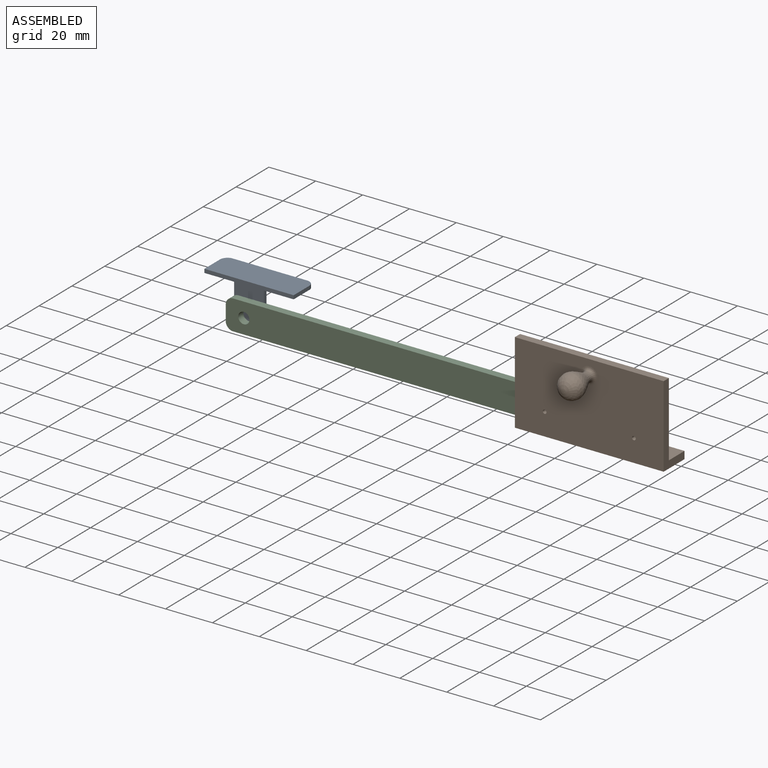
[diagram: assembled view]
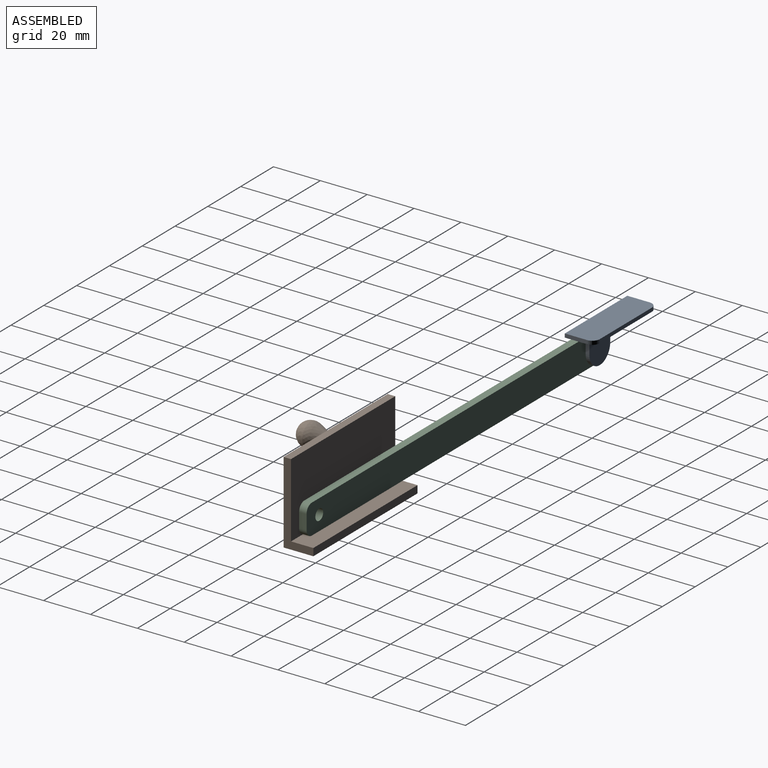
[diagram: assembled view, second angle]
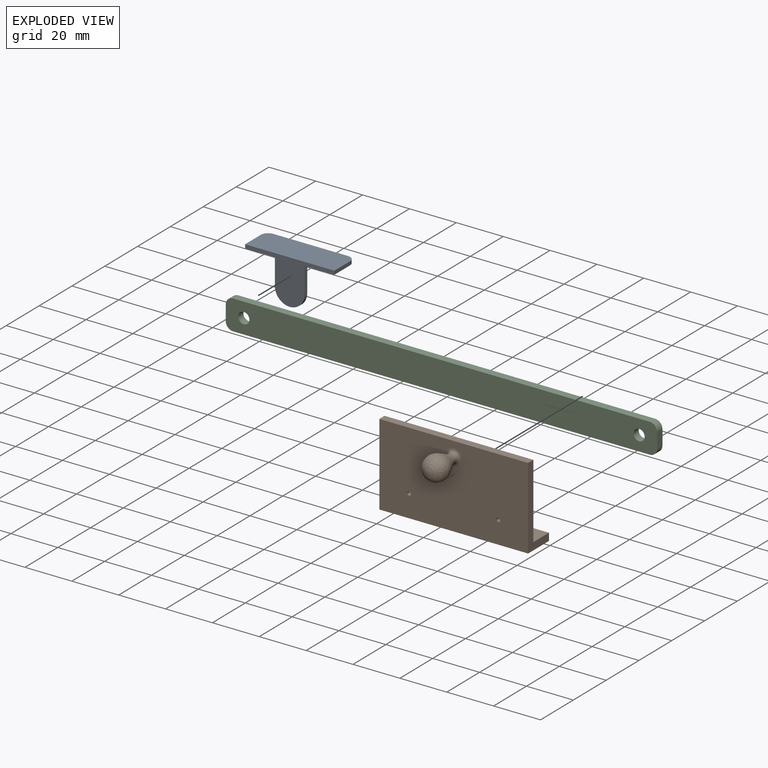
[diagram: exploded view]
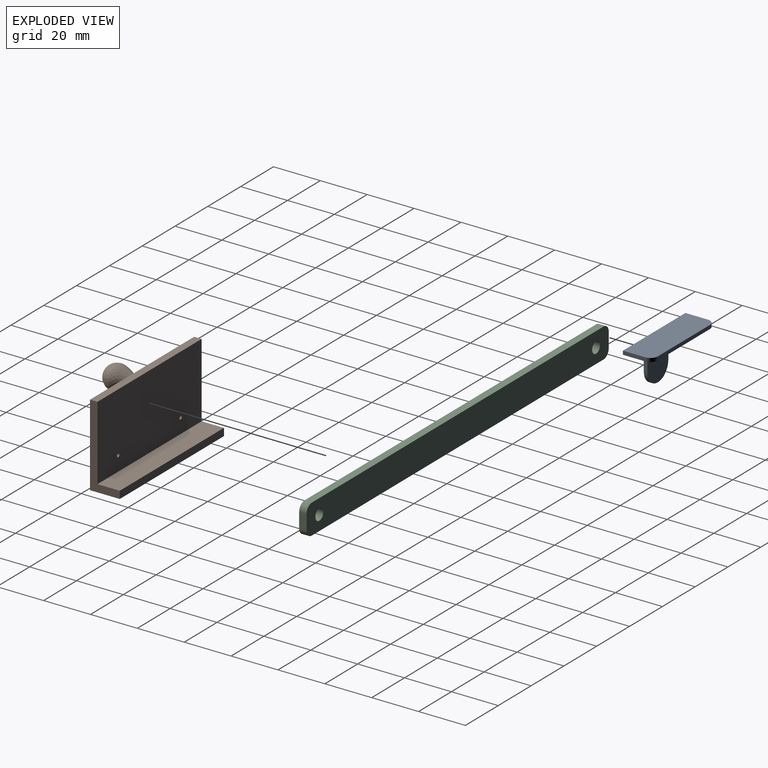
[diagram: exploded view, second angle]
ASSEMBLY  parts=3 mates=2
PART A: 12 faces, bbox 38.1x12.7x19.1 mm
  f0: plane 9.53x1.59mm, normal (-1,0,0), area 15.1mm2, adj f1,f5,f6,f7
  f1: cylinder r=3.17mm len=3.18mm, axis (0,0,-1), area 7.9mm2, adj f0,f2,f6,f7
  f2: plane 31.75x1.59mm, normal (0,-1,0), area 50.4mm2, adj f1,f3,f6,f7
  f3: cylinder r=3.17mm len=3.18mm, axis (0,0,-1), area 7.9mm2, adj f2,f4,f6,f7
  f4: plane 9.53x1.59mm, normal (1,0,0), area 15.1mm2, adj f3,f5,f6,f7
  f5: plane 38.1x19.05mm, normal (0,1,0), area 265mm2, adj f0,f4,f6,f7,f8,f9,f10
  f6: plane 38.1x12.7mm, normal (0,0,1), area 459.4mm2, adj f0,f1,f2,f3,f4,f5,f8,f9
  f7: plane 38.1x12.7mm, normal (0,0,-1), area 479.5mm2, adj f0,f1,f2,f3,f4,f5
  f8: plane 11.11x1.59mm, normal (-1,0,0), area 17.6mm2, adj f5,f6,f10,f11
  f9: plane 11.11x1.59mm, normal (1,0,0), area 17.6mm2, adj f5,f6,f10,f11
  f10: cylinder r=6.35mm len=12.7mm, axis (0,1,0), area 31.7mm2, adj f5,f8,f9,f11
  f11: plane 17.46x12.7mm, normal (0,-1,0), area 204.5mm2, adj f6,f8,f9,f10
PART B: 12 faces, bbox 63.5x28.6x34.9 mm
  f0: plane 34.93x12.7mm, normal (-1,0,0), area 141.1mm2, adj f1,f3,f4,f5,f6,f7
  f1: plane 63.5x3.18mm, normal (0,-1,0), area 201.6mm2, adj f0,f2,f4,f5
  f2: plane 34.93x12.7mm, normal (1,0,0), area 141.1mm2, adj f1,f3,f4,f5,f6,f7
  f3: plane 63.5x34.93mm, normal (0,1,0), area 2173.3mm2, adj f0,f2,f5,f7,f9,f10,f11
  f4: plane 63.5x9.53mm, normal (0,0,1), area 604.8mm2, adj f0,f1,f2,f6
  f5: plane 63.5x12.7mm, normal (0,0,-1), area 806.4mm2, adj f0,f1,f2,f3
  f6: plane 63.5x31.75mm, normal (0,-1,0), area 2012.2mm2, adj f0,f2,f4,f7,f10,f11
  f7: plane 63.5x3.18mm, normal (0,0,1), area 201.6mm2, adj f0,f2,f3,f6
  f8: revolved ~10.3x10.3mm, area 167mm2, adj f9
  f9: revolved ~10.72x10.3mm, area 263.6mm2, adj f3,f8
  f10: cylinder r=0.79mm len=3.18mm, axis (0,-1,0), area 15.8mm2, adj f3,f6
  f11: cylinder r=0.79mm len=3.18mm, axis (0,-1,0), area 15.8mm2, adj f3,f6
PART C: 12 faces, bbox 184.2x12.7x3.2 mm
  f0: plane 177.8x3.18mm, normal (0,1,0), area 564.5mm2, adj f1,f7,f8,f9
  f1: cylinder r=3.17mm len=3.18mm, axis (0,0,-1), area 15.8mm2, adj f0,f2,f8,f9
  f2: plane 6.35x3.18mm, normal (-1,0,0), area 20.2mm2, adj f1,f3,f8,f9
  f3: cylinder r=3.17mm len=3.18mm, axis (0,0,-1), area 15.8mm2, adj f2,f4,f8,f9
  f4: plane 177.8x3.18mm, normal (0,-1,0), area 564.5mm2, adj f3,f5,f8,f9
  f5: cylinder r=3.17mm len=3.18mm, axis (0,0,-1), area 15.8mm2, adj f4,f6,f8,f9
  f6: plane 6.35x3.18mm, normal (1,0,0), area 20.2mm2, adj f5,f7,f8,f9
  f7: cylinder r=3.17mm len=3.18mm, axis (0,0,-1), area 15.8mm2, adj f0,f6,f8,f9
  f8: plane 184.15x12.7mm, normal (0,0,1), area 2294.4mm2, adj f0,f1,f2,f3,f4,f5,f6,f7
  f9: plane 184.15x12.7mm, normal (0,0,-1), area 2294.4mm2, adj f0,f1,f2,f3,f4,f5,f6,f7
  f10: cylinder r=2.38mm len=4.76mm, axis (0,0,1), area 47.5mm2, adj f8,f9
  f11: cylinder r=2.38mm len=4.76mm, axis (0,0,1), area 47.5mm2, adj f8,f9
PLACE A rot(axis=(1,0,0),180deg) t=(0,-6.3,0)mm
PLACE B rot(axis=(0,0,1),180deg) t=(149.63,-18.22,-22.22)mm
PLACE C rot(axis=(1,0,0),90deg) t=(84.34,-6.3,-19.05)mm
MATE revolute A.f10 <-> C.f11  axis (0,-1,0) through (0,-6.3,-12.7)mm
MATE fastened B.f11 <-> C.f10  axis (0,1,0) through (168.68,-9.47,-12.7)mm
